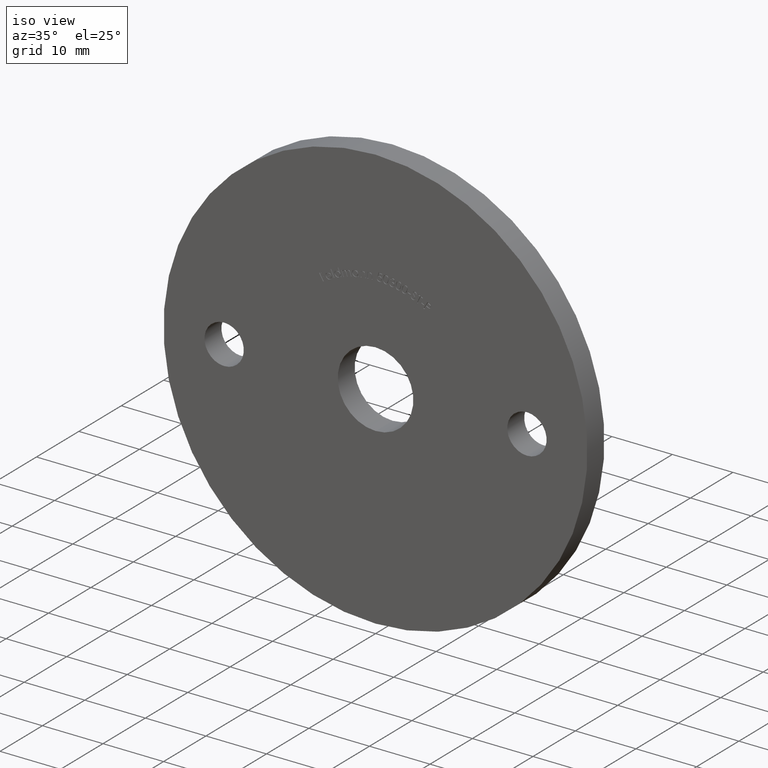
[diagram: clean part render]
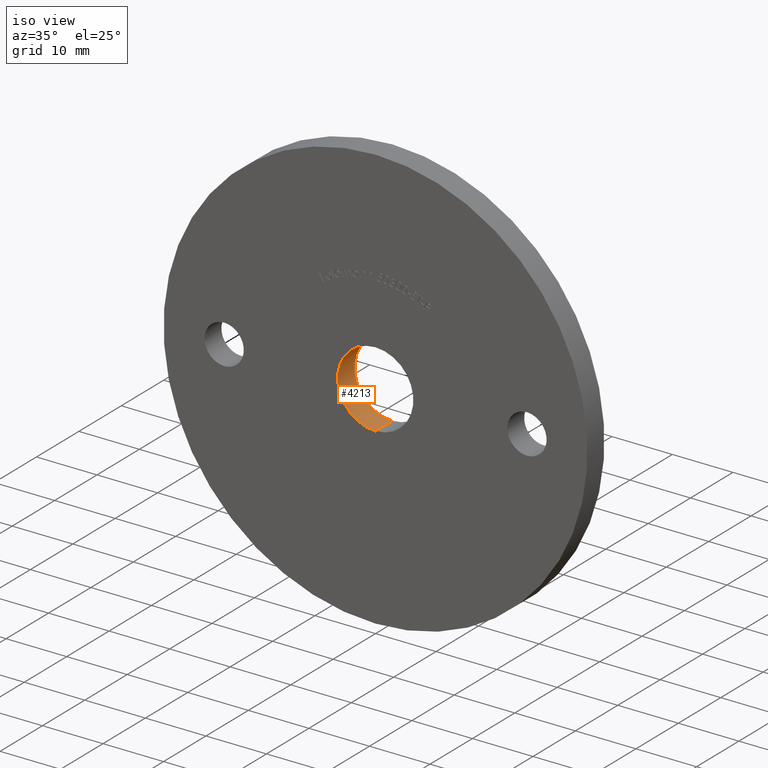
[diagram: same view with one face highlighted and labeled with its STEP entity id]
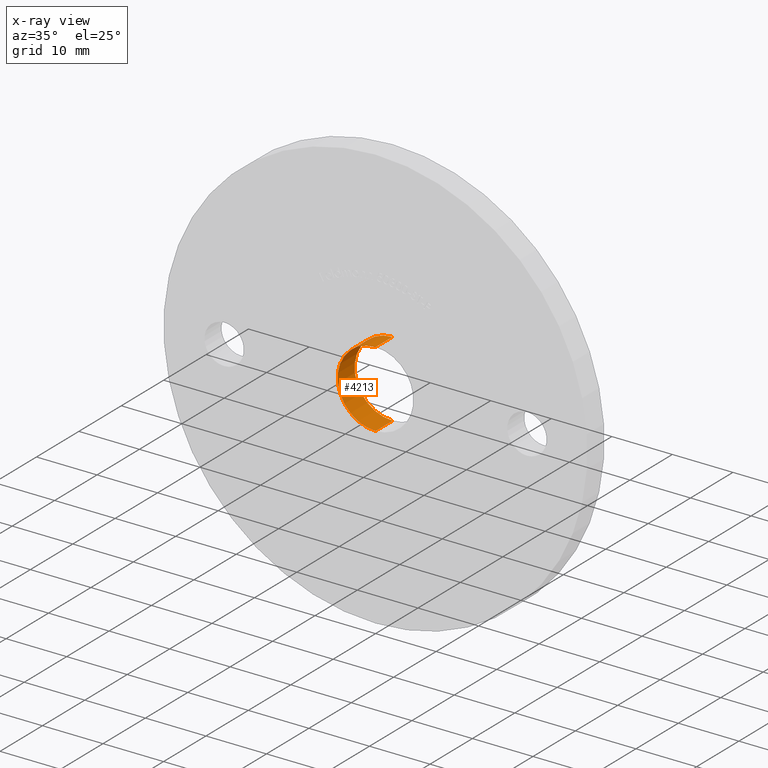
[diagram: x-ray of the same camera — body ghosted, the highlighted face saturated]
A machine part, iso view. The second image highlights one B-rep face of the part: STEP entity #4213.
The next image is the same camera in x-ray: the body ghosted, the highlighted face saturated — about 0% of this face is hidden behind the body in this view.
In plain terms, the highlighted cylindrical surface (partial cylindrical patch) has radius 6.25 mm, axis along (-0, 1, -0).
Its self-contained STEP definition (entity closure, byte-faithful):
#627 = CARTESIAN_POINT ( 'NONE',  ( 0.0000000000000000000, 4.000000000000000000, 6.250000000000000000 ) ) ;
#820 = AXIS2_PLACEMENT_3D ( 'NONE', #9101, #12382, #11314 ) ;
#1105 = CIRCLE ( 'NONE', #7094, 6.250000000000000000 ) ;
#1810 = CARTESIAN_POINT ( 'NONE',  ( 0.0000000000000000000, 0.0000000000000000000, 6.250000000000000000 ) ) ;
#2773 = CARTESIAN_POINT ( 'NONE',  ( 0.0000000000000000000, 0.0000000000000000000, 6.250000000000000000 ) ) ;
#3118 = EDGE_CURVE ( 'NONE', #6708, #7704, #10534, .T. ) ;
#3461 = CARTESIAN_POINT ( 'NONE',  ( 7.654042494670957600E-016, 0.0000000000000000000, -6.250000000000000000 ) ) ;
#3801 = CARTESIAN_POINT ( 'NONE',  ( 7.654042494670957600E-016, 0.0000000000000000000, -6.250000000000000000 ) ) ;
#4213 = ADVANCED_FACE ( 'NONE', ( #5223 ), #8268, .F. ) ;
#4850 = VECTOR ( 'NONE', #11367, 1000.000000000000000 ) ;
#4984 = ORIENTED_EDGE ( 'NONE', *, *, #10793, .T. ) ;
#5223 = FACE_OUTER_BOUND ( 'NONE', #7154, .T. ) ;
#5327 = DIRECTION ( 'NONE',  ( 0.0000000000000000000, 0.0000000000000000000, 1.000000000000000000 ) ) ;
#5492 = AXIS2_PLACEMENT_3D ( 'NONE', #7355, #5585, #10881 ) ;
#5585 = DIRECTION ( 'NONE',  ( -0.0000000000000000000, 1.000000000000000000, -0.0000000000000000000 ) ) ;
#5660 = ORIENTED_EDGE ( 'NONE', *, *, #10021, .T. ) ;
#5960 = DIRECTION ( 'NONE',  ( -0.0000000000000000000, 1.000000000000000000, -0.0000000000000000000 ) ) ;
#6708 = VERTEX_POINT ( 'NONE', #3461 ) ;
#6770 = VECTOR ( 'NONE', #5960, 1000.000000000000000 ) ;
#6809 = DIRECTION ( 'NONE',  ( 0.0000000000000000000, 1.000000000000000000, 0.0000000000000000000 ) ) ;
#7094 = AXIS2_PLACEMENT_3D ( 'NONE', #11948, #6809, #5327 ) ;
#7154 = EDGE_LOOP ( 'NONE', ( #11861, #4984, #5660, #12746 ) ) ;
#7355 = CARTESIAN_POINT ( 'NONE',  ( 0.0000000000000000000, 0.0000000000000000000, 0.0000000000000000000 ) ) ;
#7704 = VERTEX_POINT ( 'NONE', #1810 ) ;
#7888 = LINE ( 'NONE', #3801, #4850 ) ;
#8268 = CYLINDRICAL_SURFACE ( 'NONE', #5492, 6.250000000000000000 ) ;
#8714 = CARTESIAN_POINT ( 'NONE',  ( 7.654042494670957600E-016, 4.000000000000000000, -6.250000000000000000 ) ) ;
#9101 = CARTESIAN_POINT ( 'NONE',  ( 0.0000000000000000000, 0.0000000000000000000, 0.0000000000000000000 ) ) ;
#9216 = VERTEX_POINT ( 'NONE', #627 ) ;
#10021 = EDGE_CURVE ( 'NONE', #13782, #9216, #1105, .T. ) ;
#10534 = CIRCLE ( 'NONE', #820, 6.250000000000000000 ) ;
#10793 = EDGE_CURVE ( 'NONE', #6708, #13782, #7888, .T. ) ;
#10881 = DIRECTION ( 'NONE',  ( 0.0000000000000000000, 0.0000000000000000000, 1.000000000000000000 ) ) ;
#11314 = DIRECTION ( 'NONE',  ( 0.0000000000000000000, 0.0000000000000000000, 1.000000000000000000 ) ) ;
#11367 = DIRECTION ( 'NONE',  ( -0.0000000000000000000, 1.000000000000000000, -0.0000000000000000000 ) ) ;
#11861 = ORIENTED_EDGE ( 'NONE', *, *, #3118, .F. ) ;
#11948 = CARTESIAN_POINT ( 'NONE',  ( 0.0000000000000000000, 4.000000000000000000, 0.0000000000000000000 ) ) ;
#12314 = EDGE_CURVE ( 'NONE', #7704, #9216, #12594, .T. ) ;
#12382 = DIRECTION ( 'NONE',  ( 0.0000000000000000000, 1.000000000000000000, 0.0000000000000000000 ) ) ;
#12594 = LINE ( 'NONE', #2773, #6770 ) ;
#12746 = ORIENTED_EDGE ( 'NONE', *, *, #12314, .F. ) ;
#13782 = VERTEX_POINT ( 'NONE', #8714 ) ;